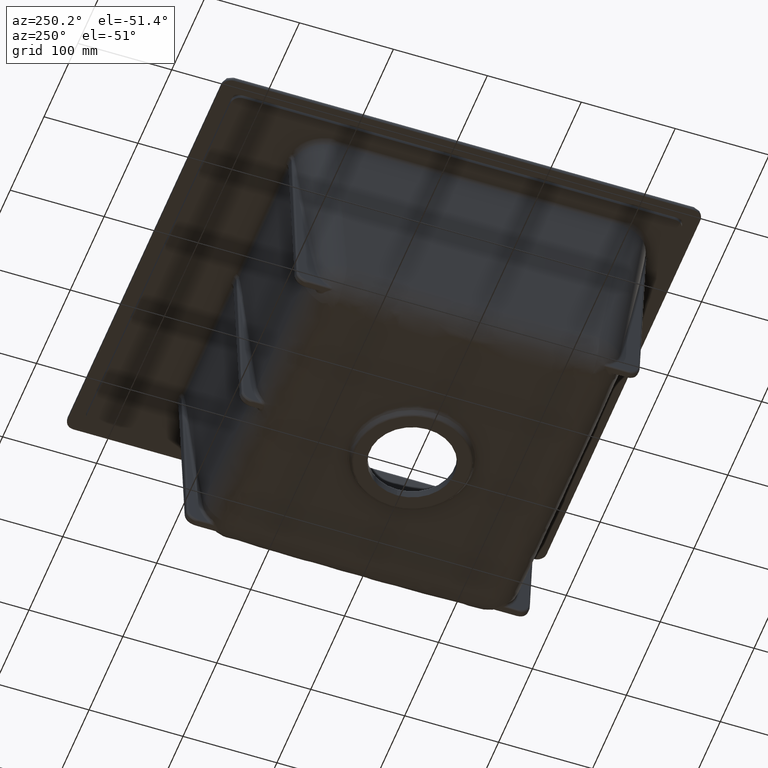
[diagram: clean part render]
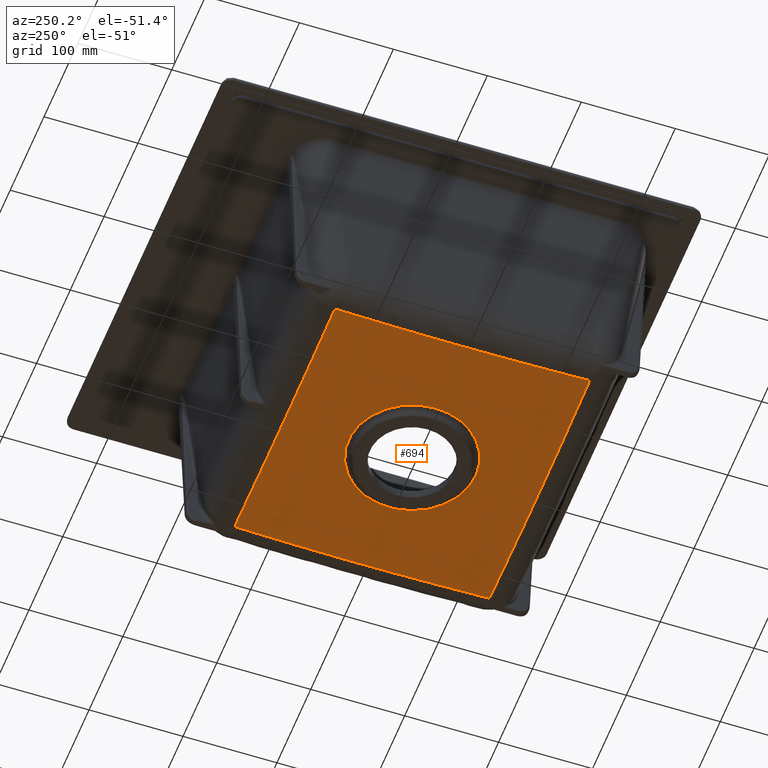
[diagram: same view with one face highlighted and labeled with its STEP entity id]
A machine part, auxiliary view. The second image highlights one B-rep face of the part: STEP entity #694.
In plain terms, the highlighted conical surface has half-angle 87.138 deg.
Its self-contained STEP definition (entity closure, byte-faithful):
#79=CONICAL_SURFACE('',#3668,0.,87.1375947738884);
#489=B_SPLINE_CURVE_WITH_KNOTS('',3,(#5050,#5051,#5052,#5053,#5054,#5055,
#5056,#5057,#5058,#5059,#5060,#5061,#5062,#5063,#5064,#5065,#5066,#5067,
#5068,#5069,#5070,#5071,#5072,#5073,#5074,#5075,#5076),.UNSPECIFIED.,.F.,
 .F.,(4,2,2,2,2,2,2,2,2,1,2,2,2,4),(0.,0.125000000000003,0.187500000000004,
0.218750000000005,0.234375000000005,0.250000000000006,0.375000000000008,
0.437500000000009,0.468750000000009,0.484375000000009,0.492187500000009,
0.500000000000009,0.750000000000005,1.),.UNSPECIFIED.);
#536=B_SPLINE_CURVE_WITH_KNOTS('',3,(#7289,#7290,#7291,#7292,#7293,#7294,
#7295,#7296,#7297,#7298,#7299,#7300,#7301,#7302,#7303,#7304,#7305,#7306,
#7307,#7308,#7309,#7310,#7311,#7312,#7313,#7314,#7315),.UNSPECIFIED.,.F.,
 .F.,(4,2,2,2,2,1,2,2,2,2,2,2,2,4),(0.,0.249999999999997,0.374999999999995,
0.437499999999994,0.468749999999994,0.484374999999994,0.492187499999994,
0.499999999999994,0.624999999999996,0.687499999999996,0.718749999999997,
0.734374999999997,0.749999999999997,1.),.UNSPECIFIED.);
#539=B_SPLINE_CURVE_WITH_KNOTS('',3,(#7373,#7374,#7375,#7376,#7377,#7378,
#7379,#7380,#7381,#7382,#7383,#7384,#7385,#7386,#7387,#7388,#7389,#7390,
#7391,#7392,#7393,#7394,#7395,#7396,#7397,#7398,#7399,#7400,#7401,#7402,
#7403,#7404,#7405,#7406,#7407,#7408,#7409,#7410,#7411,#7412,#7413,#7414,
#7415,#7416,#7417,#7418,#7419,#7420,#7421,#7422,#7423,#7424,#7425,#7426,
#7427,#7428,#7429),.UNSPECIFIED.,.F.,.F.,(4,2,2,2,2,2,2,2,2,2,2,2,2,2,2,
2,2,2,2,2,2,2,2,2,1,2,2,2,4),(0.,0.125,0.187499999999999,0.218749999999999,
0.234374999999999,0.242187499999999,0.249999999999999,0.312499999999999,
0.343749999999999,0.359374999999999,0.374999999999999,0.437499999999999,
0.468749999999999,0.484374999999999,0.499999999999999,0.515624999999999,
0.531249999999999,0.562499999999999,0.624999999999999,0.640624999999999,
0.656249999999999,0.687499999999999,0.749999999999999,0.757812499999999,
0.765624999999999,0.781249999999999,0.812499999999999,0.875,1.),
 .UNSPECIFIED.);
#542=B_SPLINE_CURVE_WITH_KNOTS('',3,(#7499,#7500,#7501,#7502,#7503,#7504,
#7505,#7506,#7507,#7508,#7509,#7510,#7511,#7512,#7513,#7514,#7515,#7516,
#7517,#7518,#7519,#7520,#7521,#7522,#7523,#7524,#7525,#7526,#7527,#7528,
#7529,#7530,#7531,#7532,#7533,#7534,#7535,#7536,#7537,#7538,#7539,#7540,
#7541,#7542,#7543,#7544,#7545,#7546,#7547,#7548,#7549,#7550,#7551,#7552,
#7553,#7554,#7555,#7556,#7557,#7558,#7559,#7560,#7561,#7562,#7563,#7564),
 .UNSPECIFIED.,.F.,.F.,(4,2,2,2,1,2,2,2,2,2,2,2,2,2,2,2,2,2,2,2,2,2,2,2,
2,2,2,2,2,2,1,2,2,4),(0.,0.0625000000000004,0.0937500000000006,0.109375000000001,
0.117187500000001,0.121093750000001,0.125000000000001,0.187500000000001,
0.218750000000001,0.234375000000001,0.242187500000001,0.250000000000001,
0.312500000000001,0.343750000000001,0.359375000000001,0.375000000000001,
0.437500000000001,0.500000000000001,0.562500000000001,0.59375,0.609375,
0.625,0.6875,0.71875,0.734375,0.7421875,0.75,0.812499999999999,0.843749999999999,
0.859374999999999,0.867187499999999,0.871093749999999,0.874999999999999,
1.),.UNSPECIFIED.);
#545=B_SPLINE_CURVE_WITH_KNOTS('',3,(#7640,#7641,#7642,#7643,#7644,#7645,
#7646,#7647,#7648,#7649,#7650,#7651,#7652,#7653,#7654,#7655,#7656,#7657,
#7658,#7659,#7660,#7661,#7662,#7663,#7664,#7665,#7666,#7667,#7668,#7669,
#7670,#7671,#7672,#7673,#7674,#7675,#7676,#7677,#7678,#7679,#7680,#7681,
#7682,#7683,#7684),.UNSPECIFIED.,.F.,.F.,(4,2,2,2,2,1,2,2,2,2,2,2,2,2,2,
2,2,2,2,2,2,2,4),(0.,0.125000000000001,0.187500000000001,0.218750000000001,
0.234375000000001,0.242187500000001,0.246093750000001,0.250000000000001,
0.312500000000001,0.343750000000001,0.359375,0.375,0.499999999999999,0.562499999999999,
0.593749999999998,0.609374999999998,0.624999999999998,0.687499999999997,
0.718749999999997,0.734374999999997,0.742187499999997,0.749999999999997,
1.),.UNSPECIFIED.);
#694=ADVANCED_FACE('',(#949,#950),#79,.T.);
#949=FACE_BOUND('',#1039,.T.);
#950=FACE_BOUND('',#1040,.T.);
#1039=EDGE_LOOP('',(#1755));
#1040=EDGE_LOOP('',(#1756,#1757,#1758,#1759,#1760));
#1251=CIRCLE('',#3643,67.7914133856084);
#1755=ORIENTED_EDGE('',*,*,#2937,.T.);
#1756=ORIENTED_EDGE('',*,*,#2971,.T.);
#1757=ORIENTED_EDGE('',*,*,#2963,.T.);
#1758=ORIENTED_EDGE('',*,*,#2955,.T.);
#1759=ORIENTED_EDGE('',*,*,#2947,.T.);
#1760=ORIENTED_EDGE('',*,*,#2803,.T.);
#2496=VERTEX_POINT('',#5031);
#2499=VERTEX_POINT('',#5049);
#2585=VERTEX_POINT('',#7216);
#2592=VERTEX_POINT('',#7316);
#2597=VERTEX_POINT('',#7430);
#2602=VERTEX_POINT('',#7565);
#2803=EDGE_CURVE('',#2496,#2499,#489,.T.);
#2937=EDGE_CURVE('',#2585,#2585,#1251,.T.);
#2947=EDGE_CURVE('',#2592,#2496,#536,.T.);
#2955=EDGE_CURVE('',#2597,#2592,#539,.T.);
#2963=EDGE_CURVE('',#2602,#2597,#542,.T.);
#2971=EDGE_CURVE('',#2499,#2602,#545,.T.);
#3643=AXIS2_PLACEMENT_3D('',#7215,#4180,#4181);
#3668=AXIS2_PLACEMENT_3D('',#7703,#4230,#4231);
#4180=DIRECTION('',(4.09426123891985E-16,4.09426123891986E-16,1.));
#4181=DIRECTION('',(0.,-1.,4.09426123891986E-16));
#4230=DIRECTION('',(0.,0.,1.));
#4231=DIRECTION('',(-1.,0.,-1.38777878078137E-18));
#5031=CARTESIAN_POINT('',(-2.31395756298671E-8,135.813281844774,-215.326824983912));
#5049=CARTESIAN_POINT('',(148.239408668095,135.63279315098,-212.071199106688));
#5050=CARTESIAN_POINT('',(-3.21083080731841E-10,135.813486189081,-215.326814766696));
#5051=CARTESIAN_POINT('',(6.21231426097201,135.813230199539,-215.326827566174));
#5052=CARTESIAN_POINT('',(12.3359348632183,135.801566318544,-215.306255394938));
#5053=CARTESIAN_POINT('',(21.5528866460952,135.793321427058,-215.244519682013));
#5054=CARTESIAN_POINT('',(24.6303994954894,135.79152564205,-215.218794868359));
#5055=CARTESIAN_POINT('',(29.2739865771255,135.788617668989,-215.172488283861));
#5056=CARTESIAN_POINT('',(30.8263918433977,135.78758033402,-215.155766195026));
#5057=CARTESIAN_POINT('',(33.1641504652919,135.785439097291,-215.128753220768));
#5058=CARTESIAN_POINT('',(33.9449276630571,135.784625952747,-215.119427255848));
#5059=CARTESIAN_POINT('',(35.5099100302872,135.782698565702,-215.100132045673));
#5060=CARTESIAN_POINT('',(36.3306316959039,135.781522854824,-215.089684763974));
#5061=CARTESIAN_POINT('',(43.0769305486629,135.770169356221,-215.001369123172));
#5062=CARTESIAN_POINT('',(49.0778344581306,135.756147284692,-214.905232095539));
#5063=CARTESIAN_POINT('',(58.1874778786241,135.739127010957,-214.734575200376));
#5064=CARTESIAN_POINT('',(61.2418752669969,135.733867379,-214.673281009703));
#5065=CARTESIAN_POINT('',(65.8611102395115,135.726039806774,-214.574726885266));
#5066=CARTESIAN_POINT('',(67.4071147882539,135.72343112727,-214.540773370715));
#5067=CARTESIAN_POINT('',(69.7367460880833,135.719375220736,-214.488189889282));
#5068=CARTESIAN_POINT('',(70.9042165724805,135.717310893276,-214.461484846164));
#5069=CARTESIAN_POINT('',(72.0758893026949,135.715159820233,-214.434159849443));
#5070=CARTESIAN_POINT('',(72.8579619333239,135.713702607868,-214.415805417495));
#5071=CARTESIAN_POINT('',(73.2855403320701,135.71289309369,-214.40570236787));
#5072=CARTESIAN_POINT('',(85.0316344903749,135.690308422215,-214.126587261578));
#5073=CARTESIAN_POINT('',(96.8102268434729,135.6849245027,-213.797420953464));
#5074=CARTESIAN_POINT('',(121.574886938394,135.659177491303,-213.022069866547));
#5075=CARTESIAN_POINT('',(134.557957152797,135.633087865085,-212.575885087744));
#5076=CARTESIAN_POINT('',(148.239408372745,135.633031477434,-212.071191073595));
#7215=CARTESIAN_POINT('',(0.,8.32667268468867E-14,-218.72791840687));
#7216=CARTESIAN_POINT('',(0.,-67.7914133856083,-218.72791840687));
#7289=CARTESIAN_POINT('',(-148.239418415394,135.633293363822,-212.071181863939));
#7290=CARTESIAN_POINT('',(-134.639290159966,135.631848802941,-212.572926184245));
#7291=CARTESIAN_POINT('',(-121.727520955539,135.657988918634,-213.016862521658));
#7292=CARTESIAN_POINT('',(-103.249146291496,135.678216276096,-213.59605505344));
#7293=CARTESIAN_POINT('',(-97.236532423957,135.683509330919,-213.774667234978));
#7294=CARTESIAN_POINT('',(-88.4047514713592,135.69239099687,-214.0209075137));
#7295=CARTESIAN_POINT('',(-85.4918928676927,135.695556277582,-214.099374607676));
#7296=CARTESIAN_POINT('',(-81.1638982625163,135.701226308287,-214.211655750245));
#7297=CARTESIAN_POINT('',(-79.7281070994857,135.703270457046,-214.248179548035));
#7298=CARTESIAN_POINT('',(-77.5839889158687,135.706641571147,-214.301610370121));
#7299=CARTESIAN_POINT('',(-76.5143211343703,135.708403258441,-214.327987062514));
#7300=CARTESIAN_POINT('',(-75.4480936259851,135.710291755168,-214.353855676933));
#7301=CARTESIAN_POINT('',(-74.738022965058,135.711580221501,-214.370988513662));
#7302=CARTESIAN_POINT('',(-74.4245636497838,135.712160773841,-214.378515394733));
#7303=CARTESIAN_POINT('',(-67.7010932484377,135.724957529905,-214.5389375324));
#7304=CARTESIAN_POINT('',(-61.5004837749299,135.73463682427,-214.672029171908));
#7305=CARTESIAN_POINT('',(-52.3075595467231,135.752107744569,-214.84482577843));
#7306=CARTESIAN_POINT('',(-49.2610222089143,135.758312543449,-214.897951171814));
#7307=CARTESIAN_POINT('',(-44.7054950619822,135.767507084073,-214.970929048706));
#7308=CARTESIAN_POINT('',(-43.1893522752158,135.770540043805,-214.994136638806));
#7309=CARTESIAN_POINT('',(-40.917022865775,135.77482136993,-215.027270470659));
#7310=CARTESIAN_POINT('',(-40.1598930666579,135.776202766793,-215.038035489061));
#7311=CARTESIAN_POINT('',(-38.6459734665278,135.778824392989,-215.059006341432));
#7312=CARTESIAN_POINT('',(-37.918930133015,135.78001982506,-215.068822001082));
#7313=CARTESIAN_POINT('',(-24.5482163026388,135.800163722208,-215.244201074338));
#7314=CARTESIAN_POINT('',(-12.4536672666997,135.814446150263,-215.326766768425));
#7315=CARTESIAN_POINT('',(-4.62044084814918E-8,135.813071534665,-215.326835499417));
#7316=CARTESIAN_POINT('',(-148.239418925884,135.632915105148,-212.071194612092));
#7373=CARTESIAN_POINT('',(-148.240194426398,-135.632678540723,-212.071173989052));
#7374=CARTESIAN_POINT('',(-148.244472272709,-123.492200776863,-212.480779738731));
#7375=CARTESIAN_POINT('',(-148.259509563394,-111.853587032047,-212.843137954722));
#7376=CARTESIAN_POINT('',(-148.278139498848,-94.9901335769142,-213.315803978174));
#7377=CARTESIAN_POINT('',(-148.284430073927,-89.4669739309795,-213.461547435903));
#7378=CARTESIAN_POINT('',(-148.294680869862,-81.2983238877503,-213.662444797362));
#7379=CARTESIAN_POINT('',(-148.298237094639,-78.5947044519251,-213.726457613659));
#7380=CARTESIAN_POINT('',(-148.303763722296,-74.5635260277214,-213.818047381822));
#7381=CARTESIAN_POINT('',(-148.305636529001,-73.2238361115235,-213.847839061829));
#7382=CARTESIAN_POINT('',(-148.308471858622,-71.2197245522727,-213.891419217769));
#7383=CARTESIAN_POINT('',(-148.30942117374,-70.5525909002261,-213.905761375737));
#7384=CARTESIAN_POINT('',(-148.311322940366,-69.2200212746645,-213.934076570317));
#7385=CARTESIAN_POINT('',(-148.312198474761,-68.6083659965285,-213.946933889825));
#7386=CARTESIAN_POINT('',(-148.321446492472,-62.1425506159557,-214.081071627147));
#7387=CARTESIAN_POINT('',(-148.32856693037,-56.4801890742044,-214.186052020867));
#7388=CARTESIAN_POINT('',(-148.341838847301,-48.0493729906017,-214.3221428856));
#7389=CARTESIAN_POINT('',(-148.346588143783,-45.2494261964335,-214.363943219536));
#7390=CARTESIAN_POINT('',(-148.353522954274,-41.0557920736006,-214.421298788978));
#7391=CARTESIAN_POINT('',(-148.355793303952,-39.6589544273927,-214.439526490215));
#7392=CARTESIAN_POINT('',(-148.360011124051,-36.8657432161963,-214.474200248869));
#7393=CARTESIAN_POINT('',(-148.361917485593,-35.5050795280471,-214.490248677542));
#7394=CARTESIAN_POINT('',(-148.370217740805,-28.3416518817705,-214.570012998786));
#7395=CARTESIAN_POINT('',(-148.370939528354,-22.6903804981609,-214.61792283338));
#7396=CARTESIAN_POINT('',(-148.37646444561,-14.2314805042667,-214.665935151671));
#7397=CARTESIAN_POINT('',(-148.378769856594,-11.4147506413505,-214.677963852167));
#7398=CARTESIAN_POINT('',(-148.381940095481,-7.18071246179288,-214.690043794511));
#7399=CARTESIAN_POINT('',(-148.382929615802,-5.7678725910326,-214.69307659056));
#7400=CARTESIAN_POINT('',(-148.384373581794,-2.93696071505548,-214.697154479856));
#7401=CARTESIAN_POINT('',(-148.384825365622,-1.47700940372442,-214.698201082413));
#7402=CARTESIAN_POINT('',(-148.384641576642,1.28286228818937,-214.69830054749));
#7403=CARTESIAN_POINT('',(-148.384121336772,2.73813002590912,-214.697356413848));
#7404=CARTESIAN_POINT('',(-148.382621436096,5.5657331940514,-214.693476953353));
#7405=CARTESIAN_POINT('',(-148.381662154424,6.97715671943465,-214.690542197323));
#7406=CARTESIAN_POINT('',(-148.378692753013,11.2076668181717,-214.678752851883));
#7407=CARTESIAN_POINT('',(-148.376668221705,14.0230057400322,-214.666913185125));
#7408=CARTESIAN_POINT('',(-148.371909670257,22.480677184895,-214.619453875456));
#7409=CARTESIAN_POINT('',(-148.371606350797,28.1350537601521,-214.57189392315));
#7410=CARTESIAN_POINT('',(-148.361907056167,35.3075030551108,-214.49254346711));
#7411=CARTESIAN_POINT('',(-148.359810249766,36.6798079661743,-214.47644961911));
#7412=CARTESIAN_POINT('',(-148.355410014022,39.4856602643239,-214.441781123333));
#7413=CARTESIAN_POINT('',(-148.353136282331,40.8891070708951,-214.423539289025));
#7414=CARTESIAN_POINT('',(-148.346382491693,45.1035104366163,-214.36609102684));
#7415=CARTESIAN_POINT('',(-148.34201034331,47.9185601213185,-214.324161839704));
#7416=CARTESIAN_POINT('',(-148.330002034398,56.3990265634016,-214.187483241258));
#7417=CARTESIAN_POINT('',(-148.323922215129,62.1002963365189,-214.081842792908));
#7418=CARTESIAN_POINT('',(-148.313834193389,68.6178920073837,-213.946660732956));
#7419=CARTESIAN_POINT('',(-148.312890165475,69.2273379111347,-213.933850792528));
#7420=CARTESIAN_POINT('',(-148.310846099997,70.5593477520201,-213.905551858682));
#7421=CARTESIAN_POINT('',(-148.307797391966,72.5599244697682,-213.862549239072));
#7422=CARTESIAN_POINT('',(-148.3048244464,74.5686854773946,-213.817883962937));
#7423=CARTESIAN_POINT('',(-148.299013295035,78.598385583995,-213.7263365353));
#7424=CARTESIAN_POINT('',(-148.295324696316,81.3011120740731,-213.662349083054));
#7425=CARTESIAN_POINT('',(-148.284798860136,89.467384974323,-213.46151922485));
#7426=CARTESIAN_POINT('',(-148.278488437094,94.9893628311014,-213.315809317428));
#7427=CARTESIAN_POINT('',(-148.259864398278,111.850645172514,-212.8432095893));
#7428=CARTESIAN_POINT('',(-148.244929187271,123.489654105109,-212.480849762735));
#7429=CARTESIAN_POINT('',(-148.239581088352,135.63267912011,-212.071196595022));
#7430=CARTESIAN_POINT('',(-148.239745587229,-135.633046588338,-212.071178124029));
#7499=CARTESIAN_POINT('',(148.239224024671,-135.634008189593,-212.071164907952));
#7500=CARTESIAN_POINT('',(141.728513594375,-135.633800357755,-212.3113450064));
#7501=CARTESIAN_POINT('',(135.386774389216,-135.637197790321,-212.537957500556));
#7502=CARTESIAN_POINT('',(126.11424359836,-135.642866244928,-212.857524835355));
#7503=CARTESIAN_POINT('',(123.063344436814,-135.644943994247,-212.960655379215));
#7504=CARTESIAN_POINT('',(118.544546940583,-135.648481780773,-213.110263343396));
#7505=CARTESIAN_POINT('',(117.047867757661,-135.649735891157,-213.159284689522));
#7506=CARTESIAN_POINT('',(114.816883861901,-135.651785105281,-213.231544745808));
#7507=CARTESIAN_POINT('',(113.704900099503,-135.652852096606,-213.267356783225));
#7508=CARTESIAN_POINT('',(112.598108968611,-135.653996309337,-213.302691834554));
#7509=CARTESIAN_POINT('',(111.861394043716,-135.654777999953,-213.326142538532));
#7510=CARTESIAN_POINT('',(111.529060347758,-135.655138637944,-213.336693164837));
#7511=CARTESIAN_POINT('',(104.683729125763,-135.662792703956,-213.553291564107));
#7512=CARTESIAN_POINT('',(98.3926720989357,-135.671843907479,-213.741640733748));
#7513=CARTESIAN_POINT('',(89.148181952123,-135.686043747514,-214.000902267228));
#7514=CARTESIAN_POINT('',(86.0985634427055,-135.690946075111,-214.083445741558));
#7515=CARTESIAN_POINT('',(81.5662072742463,-135.698623707331,-214.201445397809));
#7516=CARTESIAN_POINT('',(80.0624240789536,-135.701237943361,-214.239809357351));
#7517=CARTESIAN_POINT('',(77.8164445428892,-135.705250734205,-214.295901407854));
#7518=CARTESIAN_POINT('',(77.0693999383187,-135.706603522646,-214.31435644322));
#7519=CARTESIAN_POINT('',(75.5783988433068,-135.709339992597,-214.350781884347));
#7520=CARTESIAN_POINT('',(74.8823682566757,-135.710633389247,-214.367607979623));
#7521=CARTESIAN_POINT('',(67.7686592412997,-135.724036005725,-214.537459592644));
#7522=CARTESIAN_POINT('',(61.5726935479135,-135.733716895896,-214.670568766529));
#7523=CARTESIAN_POINT('',(52.3869186298125,-135.751416439043,-214.843427470823));
#7524=CARTESIAN_POINT('',(49.3427956260111,-135.757735881628,-214.896579529499));
#7525=CARTESIAN_POINT('',(44.7909705310669,-135.767172177833,-214.969606353379));
#7526=CARTESIAN_POINT('',(43.2760752162026,-135.770297425605,-214.99283175065));
#7527=CARTESIAN_POINT('',(40.2488304398748,-135.776216807759,-215.037048790481));
#7528=CARTESIAN_POINT('',(38.7858507316142,-135.778932698926,-215.057391580179));
#7529=CARTESIAN_POINT('',(30.9778386118581,-135.791396338127,-215.16000967051));
#7530=CARTESIAN_POINT('',(24.8631898249021,-135.799002033404,-215.221578433978));
#7531=CARTESIAN_POINT('',(12.4018738432004,-135.810796299375,-215.305685875329));
#7532=CARTESIAN_POINT('',(6.24406260816022,-135.812921476003,-215.32674785421));
#7533=CARTESIAN_POINT('',(-6.16100443584333,-135.81390311529,-215.326888433587));
#7534=CARTESIAN_POINT('',(-12.3390016008392,-135.810633538497,-215.305892044706));
#7535=CARTESIAN_POINT('',(-21.6254934647859,-135.801937180837,-215.243549387754));
#7536=CARTESIAN_POINT('',(-24.715707624152,-135.797971341722,-215.217717016787));
#7537=CARTESIAN_POINT('',(-29.3620638340383,-135.792056720809,-215.171391232359));
#7538=CARTESIAN_POINT('',(-30.9126786341069,-135.790059320697,-215.154686432888));
#7539=CARTESIAN_POINT('',(-34.020592181975,-135.785928250852,-215.118751091286));
#7540=CARTESIAN_POINT('',(-35.6262186209874,-135.783721220807,-215.098886536569));
#7541=CARTESIAN_POINT('',(-43.1950882073252,-135.772316970359,-214.999589532205));
#7542=CARTESIAN_POINT('',(-49.2525728346456,-135.758054531146,-214.902260636516));
#7543=CARTESIAN_POINT('',(-58.446344915066,-135.740390512213,-214.729430354686));
#7544=CARTESIAN_POINT('',(-61.5286553260397,-135.734862265738,-214.667347437694));
#7545=CARTESIAN_POINT('',(-66.1897528094017,-135.726703880118,-214.56751382763));
#7546=CARTESIAN_POINT('',(-67.749709944147,-135.723996808299,-214.533117751847));
#7547=CARTESIAN_POINT('',(-70.100287541305,-135.71982966733,-214.479846329529));
#7548=CARTESIAN_POINT('',(-70.8855861744784,-135.71842242912,-214.461809637315));
#7549=CARTESIAN_POINT('',(-72.4599275735657,-135.715546086419,-214.425177150007));
#7550=CARTESIAN_POINT('',(-73.296812327468,-135.713985393593,-214.405439734188));
#7551=CARTESIAN_POINT('',(-79.9853300580012,-135.701182946916,-214.245836201893));
#7552=CARTESIAN_POINT('',(-86.025212717457,-135.690764798442,-214.088441665905));
#7553=CARTESIAN_POINT('',(-95.2767337058477,-135.676336440284,-213.82906276767));
#7554=CARTESIAN_POINT('',(-98.3923599978086,-135.671715372883,-213.73872195255));
#7555=CARTESIAN_POINT('',(-103.118323858625,-135.665203972301,-213.597388956306));
#7556=CARTESIAN_POINT('',(-104.702389998744,-135.66310615433,-213.549307661964));
#7557=CARTESIAN_POINT('',(-107.092132331859,-135.660116413633,-213.47573027706));
#7558=CARTESIAN_POINT('',(-108.290413472864,-135.658661169345,-213.43857772376));
#7559=CARTESIAN_POINT('',(-109.493901036968,-135.65727811399,-213.400879379189));
#7560=CARTESIAN_POINT('',(-110.297392744571,-135.656373819903,-213.375625862526));
#7561=CARTESIAN_POINT('',(-110.73502894807,-135.655892542533,-213.361821370063));
#7562=CARTESIAN_POINT('',(-122.866169880148,-135.64283979657,-212.977999867462));
#7563=CARTESIAN_POINT('',(-135.215091276351,-135.632760852135,-212.55165437717));
#7564=CARTESIAN_POINT('',(-148.239744639954,-135.633764010122,-212.071153944563));
#7565=CARTESIAN_POINT('',(148.239224872509,-135.633343374091,-212.071187315569));
#7640=CARTESIAN_POINT('',(148.239581088352,135.632679120108,-212.071196595022));
#7641=CARTESIAN_POINT('',(148.244921658222,123.506749046714,-212.480273053309));
#7642=CARTESIAN_POINT('',(148.259894239432,111.883239744607,-212.84219221864));
#7643=CARTESIAN_POINT('',(148.27853564669,95.0435956006797,-213.3143350272));
#7644=CARTESIAN_POINT('',(148.284841843214,89.528568485198,-213.459926640148));
#7645=CARTESIAN_POINT('',(148.295326604503,81.3724939146736,-213.660630074711));
#7646=CARTESIAN_POINT('',(148.29899581907,78.6731294189789,-213.724583888756));
#7647=CARTESIAN_POINT('',(148.304768793688,74.6484414986567,-213.816093613608));
#7648=CARTESIAN_POINT('',(148.306736533894,73.3109331212935,-213.845860022523));
#7649=CARTESIAN_POINT('',(148.309736639671,71.3101227994713,-213.889404386842));
#7650=CARTESIAN_POINT('',(148.311248595787,70.3110801744282,-213.910900256738));
#7651=CARTESIAN_POINT('',(148.312773067083,69.3139586364055,-213.931981658239));
#7652=CARTESIAN_POINT('',(148.313791397032,68.649623888993,-213.945943821818));
#7653=CARTESIAN_POINT('',(148.314255592466,68.3475310557268,-213.952258645798));
#7654=CARTESIAN_POINT('',(148.323720610957,62.1998297480067,-214.079914764745));
#7655=CARTESIAN_POINT('',(148.329817388182,56.5055337170695,-214.185583560492));
#7656=CARTESIAN_POINT('',(148.341837961919,48.0353465783557,-214.322369544515));
#7657=CARTESIAN_POINT('',(148.34621310095,45.2236938500775,-214.36434533759));
#7658=CARTESIAN_POINT('',(148.352965312154,41.0143946942724,-214.421879724804));
#7659=CARTESIAN_POINT('',(148.355237594443,39.6126507884826,-214.440152970141));
#7660=CARTESIAN_POINT('',(148.359633468826,36.8102164857291,-214.474889693351));
#7661=CARTESIAN_POINT('',(148.361714934855,35.4407078094331,-214.491006890552));
#7662=CARTESIAN_POINT('',(148.379240509524,22.5508985966835,-214.634150763824));
#7663=CARTESIAN_POINT('',(148.385046826741,11.4423326728564,-214.69792389519));
#7664=CARTESIAN_POINT('',(148.385143281412,-5.59902381099182,-214.698386656208));
#7665=CARTESIAN_POINT('',(148.378492351064,-11.2209473635988,-214.682649589472));
#7666=CARTESIAN_POINT('',(148.373246563788,-19.673218402249,-214.635207008756));
#7667=CARTESIAN_POINT('',(148.371965118082,-22.4938469713842,-214.615419985082));
#7668=CARTESIAN_POINT('',(148.369839551834,-26.7425121630003,-214.579780204418));
#7669=CARTESIAN_POINT('',(148.369078826038,-28.1616829398272,-214.566907070004));
#7670=CARTESIAN_POINT('',(148.367089426237,-31.0080098793459,-214.539174386126));
#7671=CARTESIAN_POINT('',(148.365820701413,-32.4685150760262,-214.523945696143));
#7672=CARTESIAN_POINT('',(148.357458248501,-39.4626057588675,-214.446527613785));
#7673=CARTESIAN_POINT('',(148.347369256271,-45.0515961407855,-214.37021007129));
#7674=CARTESIAN_POINT('',(148.335039458025,-53.5031426866898,-214.234159142636));
#7675=CARTESIAN_POINT('',(148.33121226879,-56.3315595640309,-214.185213063932));
#7676=CARTESIAN_POINT('',(148.325477088291,-60.5996556029986,-214.106400292149));
#7677=CARTESIAN_POINT('',(148.323557902909,-62.0265915394266,-214.079230425933));
#7678=CARTESIAN_POINT('',(148.320547720499,-64.1743563854797,-214.037127213178));
#7679=CARTESIAN_POINT('',(148.319521995237,-64.8915043145704,-214.022868073354));
#7680=CARTESIAN_POINT('',(148.317400990588,-66.3284141518956,-213.993900322562));
#7681=CARTESIAN_POINT('',(148.316217792309,-67.1035936568902,-213.97804413754));
#7682=CARTESIAN_POINT('',(148.281367251477,-89.072680685021,-213.523113645491));
#7683=CARTESIAN_POINT('',(148.247424319759,-111.302540438979,-212.892097291386));
#7684=CARTESIAN_POINT('',(148.239236353398,-135.632679394047,-212.071209302741));
#7703=CARTESIAN_POINT('',(0.,2.77555756156289E-14,-222.11748907615));